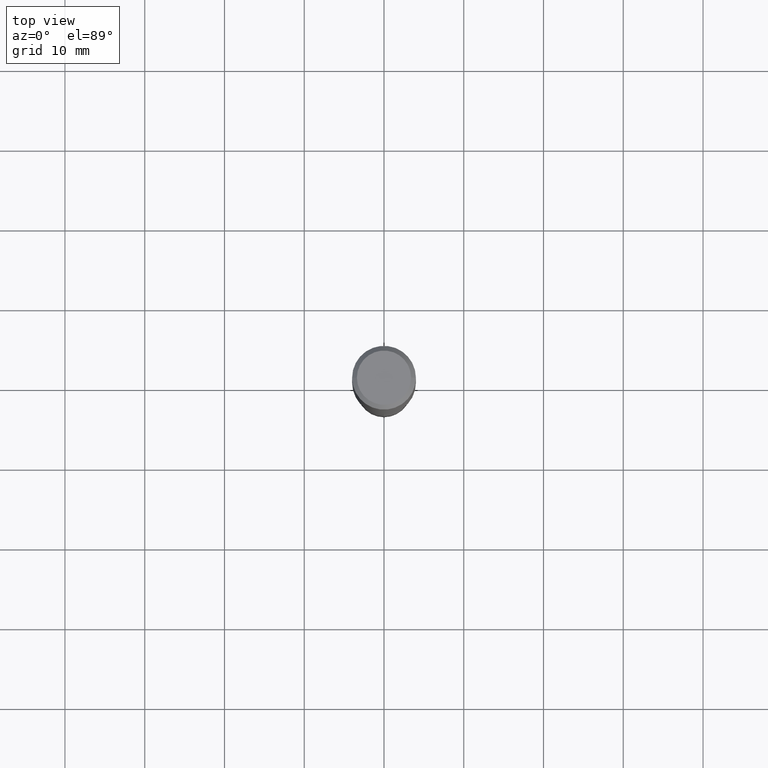
[diagram: clean part render]
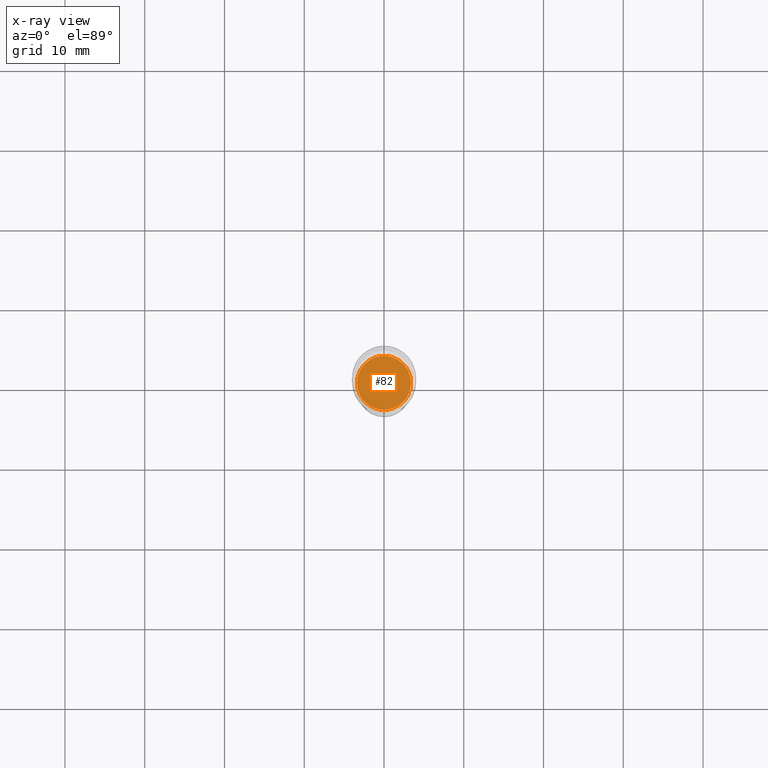
[diagram: x-ray — body ghosted, one internal face saturated and labeled with its STEP entity id]
A machine part, top view, then the same camera in x-ray: the body is ghosted and one INTERNAL B-rep face — a face not visible from any outside direction — is saturated and labeled: STEP entity #82.
In plain terms, the highlighted planar face has unit normal (-0, 0, 1).
Its self-contained STEP definition (entity closure, byte-faithful):
#32 = CIRCLE ( 'NONE', #197, 0.1333499999999999963 ) ;
#36 = PLANE ( 'NONE',  #319 ) ;
#44 = DIRECTION ( 'NONE',  ( 1.000000000000000000, -6.982962677686262766E-15, 0.000000000000000000 ) ) ;
#58 = AXIS2_PLACEMENT_3D ( 'NONE', #221, #308, #44 ) ;
#78 = FACE_OUTER_BOUND ( 'NONE', #100, .T. ) ;
#82 = ADVANCED_FACE ( 'NONE', ( #78 ), #36, .F. ) ;
#89 = CARTESIAN_POINT ( 'NONE',  ( 0.1333499999999999963, -6.155830748514348064E-15, -1.496400000000000396 ) ) ;
#93 = EDGE_CURVE ( 'NONE', #97, #324, #395, .T. ) ;
#97 = VERTEX_POINT ( 'NONE', #461 ) ;
#100 = EDGE_LOOP ( 'NONE', ( #156, #121 ) ) ;
#121 = ORIENTED_EDGE ( 'NONE', *, *, #93, .F. ) ;
#156 = ORIENTED_EDGE ( 'NONE', *, *, #311, .F. ) ;
#158 = DIRECTION ( 'NONE',  ( 1.000000000000000000, -6.982962677686265922E-15, 4.876176775795935793E-29 ) ) ;
#197 = AXIS2_PLACEMENT_3D ( 'NONE', #463, #430, #235 ) ;
#221 = CARTESIAN_POINT ( 'NONE',  ( 3.659399521575439863E-29, -5.224652675444884140E-15, -1.496400000000000396 ) ) ;
#235 = DIRECTION ( 'NONE',  ( 1.000000000000000000, -6.982962677686262766E-15, 0.000000000000000000 ) ) ;
#308 = DIRECTION ( 'NONE',  ( -2.445468806185136597E-29, 3.491481338843145583E-15, 1.000000000000000000 ) ) ;
#311 = EDGE_CURVE ( 'NONE', #324, #97, #32, .T. ) ;
#319 = AXIS2_PLACEMENT_3D ( 'NONE', #339, #389, #158 ) ;
#324 = VERTEX_POINT ( 'NONE', #89 ) ;
#339 = CARTESIAN_POINT ( 'NONE',  ( 1.518723566718794660E-29, -8.290222482508405301E-15, -1.496400000000000396 ) ) ;
#389 = DIRECTION ( 'NONE',  ( -2.438088387897960049E-29, 3.491481338843145188E-15, 1.000000000000000000 ) ) ;
#395 = CIRCLE ( 'NONE', #58, 0.1333499999999999963 ) ;
#430 = DIRECTION ( 'NONE',  ( -2.445468806185136597E-29, 3.491481338843145583E-15, 1.000000000000000000 ) ) ;
#461 = CARTESIAN_POINT ( 'NONE',  ( -0.1333499999999999963, -4.274494710134679564E-15, -1.496400000000000396 ) ) ;
#463 = CARTESIAN_POINT ( 'NONE',  ( 3.659399521575439863E-29, -5.224652675444884140E-15, -1.496400000000000396 ) ) ;